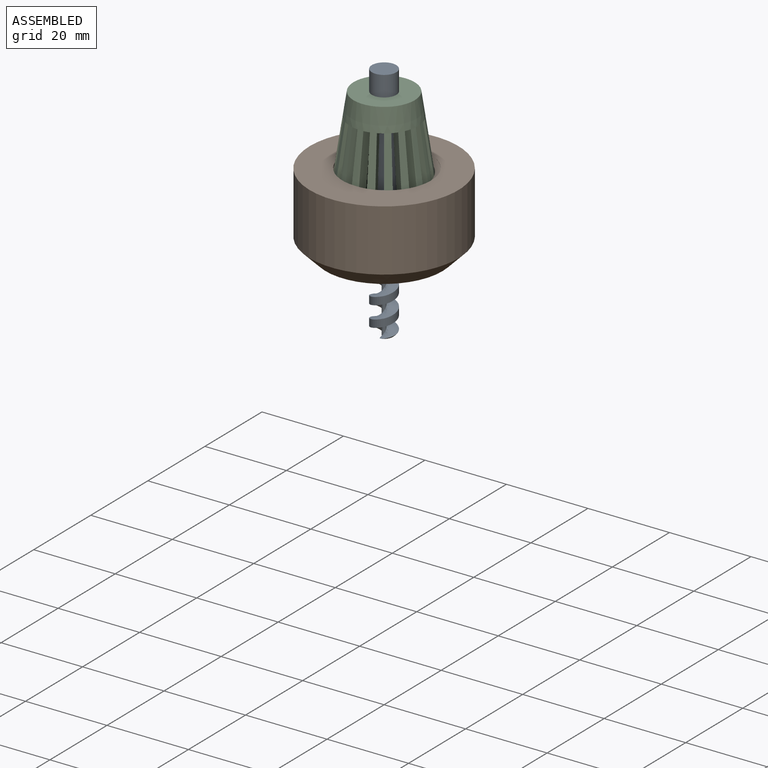
[diagram: assembled view]
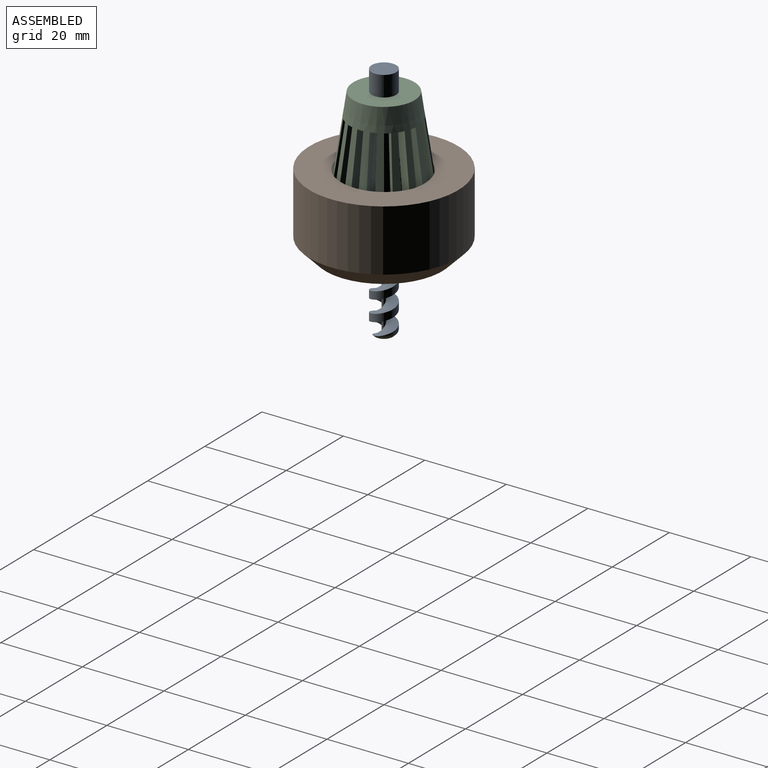
[diagram: assembled view, second angle]
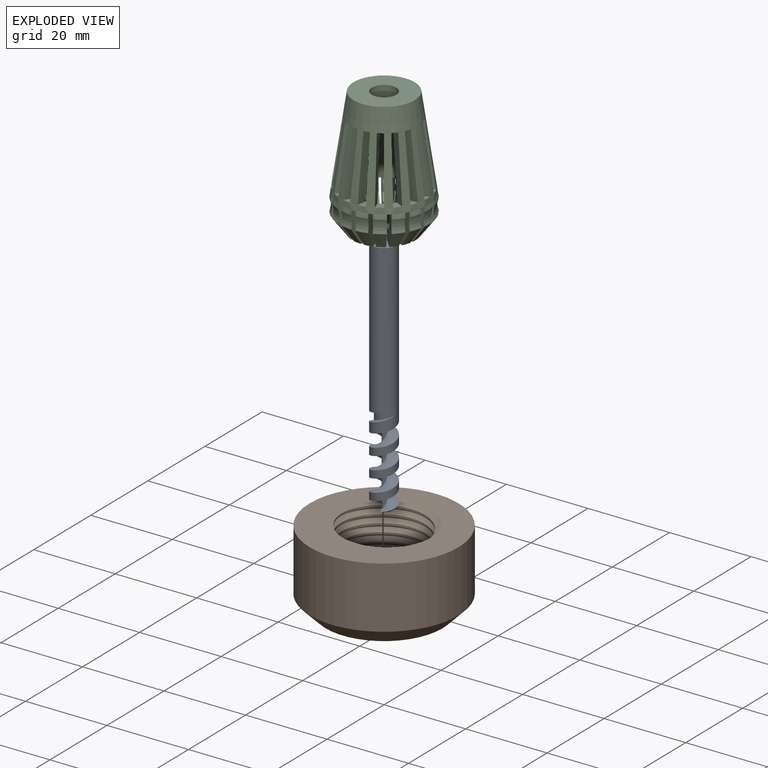
[diagram: exploded view]
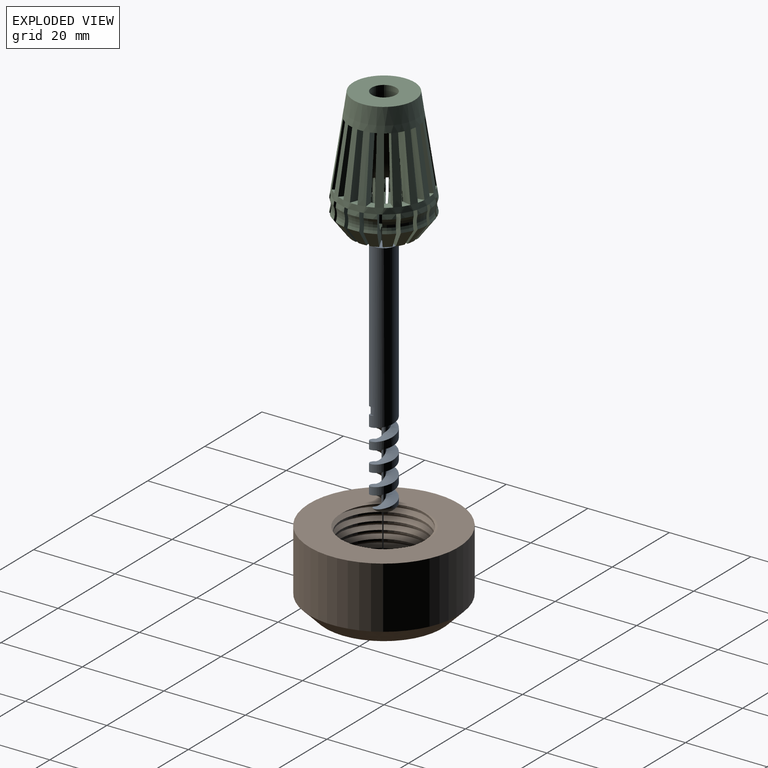
[diagram: exploded view, second angle]
ASSEMBLY  parts=3 mates=2
PART A: 17 faces, bbox 9.8x8.6x59.9 mm
  f0: cylinder r=3mm len=45.1mm, axis (0,0,1), area 757.2mm2, adj f1,f5,f8,f9,f10,f12
  f1: cylinder r=3mm len=6.85mm, axis (0,0,1), area 34.9mm2, adj f0,f2,f7,f8
  f2: cylinder r=3mm len=6.86mm, axis (0,0,1), area 35mm2, adj f1,f3,f7,f8
  f3: cylinder r=3mm len=6mm, axis (0,0,1), area 24.6mm2, adj f2,f7,f8,f14
  f4: plane 3.2x2.12mm, normal (0,0,-1), area 4.8mm2, adj f6,f7,f8,f16
  f5: plane 6x6mm, normal (0,0,1), area 28.3mm2, adj f0
  f6: cylinder r=0.5mm len=18.35mm, axis (0,0,-1), area 20.2mm2, adj f4,f7,f8,f11
  f7: bspline ~17.31x6.93mm, area 99.2mm2, adj f1,f2,f3,f4,f6,f10,f13,f14
  f8: bspline ~19.81x6.93mm, area 115.3mm2, adj f0,f1,f2,f3,f4,f6,f12,f14
  f9: plane 1.86x0.21mm, normal (0.07,-0.99,0.11), area 0mm2, adj f0,f10,f11,f12
  f10: bspline ~9.63x8.45mm, area 19.2mm2, adj f0,f7,f9,f11
  f11: bspline ~6.95x4.81mm, area 20mm2, adj f6,f9,f10,f12
  f12: bspline ~9.77x8.53mm, area 18.1mm2, adj f0,f8,f9,f11
  f13: cone r=3mm half-angle=45deg, axis (0,0,1), area 3.5mm2, adj f7,f14,f15,f16
  f14: torus R=2mm, axis (0,0,-1), area 5.3mm2, adj f3,f7,f8,f13,f15
  f15: bspline ~4.03x1.8mm, area 1.6mm2, adj f8,f13,f14,f16
  f16: torus R=1.59mm, axis (0,0,-1), area 4.4mm2, adj f4,f7,f8,f13,f15
PART B: 21 faces, bbox 37.1x37.1x20.5 mm
  f0: plane 20.5x20.5mm, normal (0,0,1), area 31.4mm2, adj f5,f12
  f1: plane 28.74x28.74mm, normal (0,0,-1), area 350.1mm2, adj f2,f5
  f2: cone r=14.37mm half-angle=45deg, axis (0,0,1), area 562.3mm2, adj f1,f3
  f3: cylinder r=18.25mm len=36.5mm, axis (0,0,-1), area 1733.8mm2, adj f2,f4
  f4: plane 37.13x37.13mm, normal (0,0,1), area 684.2mm2, adj f3,f9,f10,f11,f19
  f5: cylinder r=9.75mm len=19.5mm, axis (0,0,-1), area 250mm2, adj f0,f1
  f6: bspline ~22.26x21.85mm, area 44.9mm2, adj f8,f10,f12,f13,f20
  f7: bspline ~22.26x21.85mm, area 44.8mm2, adj f8,f9,f12,f20
  f8: bspline ~22.44x22.03mm, area 19.8mm2, adj f6,f7,f11,f20
  f9: bspline ~26.17x22.67mm, area 495.3mm2, adj f4,f7,f11,f13,f14,f15,f16,f17
  f10: bspline ~26.17x22.67mm, area 458.4mm2, adj f4,f6,f11,f14,f15,f16,f17,f18
  f11: bspline ~26.38x22.85mm, area 116.5mm2, adj f4,f8,f9,f10
  f12: cylinder r=10.25mm len=20.5mm, axis (0,0,1), area 142.2mm2, adj f0,f6,f7,f13,f20
  f13: cylinder r=10.25mm len=20.5mm, axis (0,0,1), area 50.8mm2, adj f6,f9,f12,f14
  f14: cylinder r=10.25mm len=20.5mm, axis (0,0,1), area 32.2mm2, adj f9,f10,f13,f15
  f15: cylinder r=10.25mm len=20.5mm, axis (0,0,1), area 32.2mm2, adj f9,f10,f14,f16
  f16: cylinder r=10.25mm len=20.5mm, axis (0,0,1), area 32.3mm2, adj f9,f10,f15,f17
  f17: cylinder r=10.25mm len=20.5mm, axis (0,0,1), area 32.2mm2, adj f9,f10,f16,f18
  f18: cylinder r=10.25mm len=20.5mm, axis (0,0,1), area 32.2mm2, adj f9,f10,f17,f19
  f19: cylinder r=10.25mm len=10.25mm, axis (0,0,1), area 4mm2, adj f4,f10,f18
  f20: plane 0.35x0.15mm, normal (0,-1,0), area 0mm2, adj f6,f7,f8,f12
PART C: 224 faces, bbox 24.2x24.1x31 mm
  f0: torus R=15.1mm, axis (0,0,1), area 5.7mm2, adj f17,f70,f198,f223
  f1: torus R=15.1mm, axis (0,0,1), area 5.7mm2, adj f18,f70,f215,f222
  f2: torus R=15.1mm, axis (0,0,1), area 5.7mm2, adj f19,f70,f118,f207
  f3: torus R=15.1mm, axis (0,0,1), area 5.7mm2, adj f20,f70,f199,f206
  f4: torus R=15.1mm, axis (0,0,1), area 5.7mm2, adj f21,f70,f166,f191
  f5: torus R=15.1mm, axis (0,0,1), area 5.7mm2, adj f22,f70,f183,f190
  f6: torus R=15.1mm, axis (0,0,1), area 5.7mm2, adj f23,f70,f175,f214
  f7: torus R=15.1mm, axis (0,0,1), area 5.7mm2, adj f24,f70,f167,f174
  f8: torus R=15.1mm, axis (0,0,1), area 5.7mm2, adj f25,f70,f134,f159
  f9: torus R=15.1mm, axis (0,0,1), area 5.7mm2, adj f26,f70,f151,f158
  f10: torus R=15.1mm, axis (0,0,1), area 5.7mm2, adj f27,f70,f94,f143
  f11: torus R=15.1mm, axis (0,0,1), area 5.7mm2, adj f28,f70,f135,f142
  f12: torus R=15.1mm, axis (0,0,1), area 5.7mm2, adj f29,f70,f102,f127
  f13: torus R=15.1mm, axis (0,0,1), area 5.7mm2, adj f30,f70,f119,f126
  f14: torus R=15.1mm, axis (0,0,1), area 5.7mm2, adj f31,f70,f111,f150
  f15: torus R=15.1mm, axis (0,0,1), area 5.7mm2, adj f32,f70,f103,f110
  f16: torus R=15.1mm, axis (0,0,1), area 5.7mm2, adj f33,f70,f86,f95
  f17: cone r=7.75mm half-angle=36.9deg, axis (0,0,1), area 4.7mm2, adj f0,f73,f198,f223
  f18: cone r=7.75mm half-angle=36.9deg, axis (0,0,1), area 4.7mm2, adj f1,f73,f215,f222
  f19: cone r=7.75mm half-angle=36.9deg, axis (0,0,1), area 4.7mm2, adj f2,f73,f118,f207
  f20: cone r=7.75mm half-angle=36.9deg, axis (0,0,1), area 4.7mm2, adj f3,f73,f199,f206
  f21: cone r=7.75mm half-angle=36.9deg, axis (0,0,1), area 4.7mm2, adj f4,f73,f166,f191
  f22: cone r=7.75mm half-angle=36.9deg, axis (0,0,1), area 4.7mm2, adj f5,f73,f183,f190
  f23: cone r=7.75mm half-angle=36.9deg, axis (0,0,1), area 4.7mm2, adj f6,f73,f175,f214
  f24: cone r=7.75mm half-angle=36.9deg, axis (0,0,1), area 4.7mm2, adj f7,f73,f167,f174
  f25: cone r=7.75mm half-angle=36.9deg, axis (0,0,1), area 4.7mm2, adj f8,f73,f134,f159
  f26: cone r=7.75mm half-angle=36.9deg, axis (0,0,1), area 4.7mm2, adj f9,f73,f151,f158
  f27: cone r=7.75mm half-angle=36.9deg, axis (0,0,1), area 4.7mm2, adj f10,f73,f94,f143
  f28: cone r=7.75mm half-angle=36.9deg, axis (0,0,1), area 4.7mm2, adj f11,f73,f135,f142
  f29: cone r=7.75mm half-angle=36.9deg, axis (0,0,1), area 4.7mm2, adj f12,f73,f102,f127
  f30: cone r=7.75mm half-angle=36.9deg, axis (0,0,1), area 4.7mm2, adj f13,f73,f119,f126
  f31: cone r=7.75mm half-angle=36.9deg, axis (0,0,1), area 4.7mm2, adj f14,f73,f111,f150
  f32: cone r=7.75mm half-angle=36.9deg, axis (0,0,1), area 4.7mm2, adj f15,f73,f103,f110
  f33: cone r=7.75mm half-angle=36.9deg, axis (0,0,1), area 4.7mm2, adj f16,f73,f86,f95
  f34: cone r=11mm half-angle=36.9deg, axis (0,0,1), area 13.4mm2, adj f51,f75,f198,f223
  f35: cone r=11mm half-angle=36.9deg, axis (0,0,1), area 13.4mm2, adj f52,f75,f215,f222
  f36: cone r=11mm half-angle=36.9deg, axis (0,0,1), area 13.4mm2, adj f53,f75,f118,f207
  f37: cone r=11mm half-angle=36.9deg, axis (0,0,1), area 13.4mm2, adj f54,f75,f199,f206
  f38: cone r=11mm half-angle=36.9deg, axis (0,0,1), area 13.4mm2, adj f55,f75,f166,f191
  f39: cone r=11mm half-angle=36.9deg, axis (0,0,1), area 13.4mm2, adj f56,f75,f183,f190
  f40: cone r=11mm half-angle=36.9deg, axis (0,0,1), area 13.4mm2, adj f57,f75,f175,f214
  f41: cone r=11mm half-angle=36.9deg, axis (0,0,1), area 13.4mm2, adj f58,f75,f167,f174
  f42: cone r=11mm half-angle=36.9deg, axis (0,0,1), area 13.4mm2, adj f59,f75,f134,f159
  f43: cone r=11mm half-angle=36.9deg, axis (0,0,1), area 13.4mm2, adj f60,f75,f151,f158
  f44: cone r=11mm half-angle=36.9deg, axis (0,0,1), area 13.4mm2, adj f61,f75,f94,f143
  f45: cone r=11mm half-angle=36.9deg, axis (0,0,1), area 13.4mm2, adj f62,f75,f135,f142
  f46: cone r=11mm half-angle=36.9deg, axis (0,0,1), area 13.4mm2, adj f63,f75,f102,f127
  f47: cone r=11mm half-angle=36.9deg, axis (0,0,1), area 13.4mm2, adj f64,f75,f119,f126
  f48: cone r=11mm half-angle=36.9deg, axis (0,0,1), area 13.4mm2, adj f65,f75,f111,f150
  f49: cone r=11mm half-angle=36.9deg, axis (0,0,1), area 13.4mm2, adj f66,f75,f103,f110
  f50: cone r=11mm half-angle=36.9deg, axis (0,0,1), area 13.4mm2, adj f67,f75,f86,f95
  f51: torus R=15.1mm, axis (0,0,1), area 9.3mm2, adj f34,f78,f198,f223
  f52: torus R=15.1mm, axis (0,0,1), area 9.3mm2, adj f35,f78,f215,f222
  f53: torus R=15.1mm, axis (0,0,1), area 9.3mm2, adj f36,f78,f118,f207
  f54: torus R=15.1mm, axis (0,0,1), area 9.3mm2, adj f37,f78,f199,f206
  f55: torus R=15.1mm, axis (0,0,1), area 9.3mm2, adj f38,f78,f166,f191
  f56: torus R=15.1mm, axis (0,0,1), area 9.3mm2, adj f39,f78,f183,f190
  f57: torus R=15.1mm, axis (0,0,1), area 9.3mm2, adj f40,f78,f175,f214
  f58: torus R=15.1mm, axis (0,0,1), area 9.3mm2, adj f41,f78,f167,f174
  f59: torus R=15.1mm, axis (0,0,1), area 9.3mm2, adj f42,f78,f134,f159
  f60: torus R=15.1mm, axis (0,0,1), area 9.3mm2, adj f43,f78,f151,f158
  f61: torus R=15.1mm, axis (0,0,1), area 9.3mm2, adj f44,f78,f94,f143
  f62: torus R=15.1mm, axis (0,0,1), area 9.3mm2, adj f45,f78,f135,f142
  f63: torus R=15.1mm, axis (0,0,1), area 9.3mm2, adj f46,f78,f102,f127
  f64: torus R=15.1mm, axis (0,0,1), area 9.3mm2, adj f47,f78,f119,f126
  f65: torus R=15.1mm, axis (0,0,1), area 9.3mm2, adj f48,f78,f111,f150
  f66: torus R=15.1mm, axis (0,0,1), area 9.3mm2, adj f49,f78,f103,f110
  f67: torus R=15.1mm, axis (0,0,1), area 9.3mm2, adj f50,f78,f86,f95
  f68: cylinder r=3mm len=6mm, axis (0,0,1), area 56.5mm2, adj f69,f79
  f69: plane 9.83x9.83mm, normal (0,0,-1), area 47.6mm2, adj f68,f70
  f70: cone r=7.93mm half-angle=8.5deg, axis (0,0,-1), area 497.9mm2, adj f0,f1,f2,f3,f4,f5,f6,f7
  f71: torus R=15.1mm, axis (0,0,1), area 5.7mm2, adj f70,f72,f87,f182
  f72: cone r=7.75mm half-angle=36.9deg, axis (0,0,1), area 4.7mm2, adj f71,f73,f87,f182
  f73: plane 12.4x12.39mm, normal (0,0,1), area 77.8mm2, adj f17,f18,f19,f20,f21,f22,f23,f24
  f74: cylinder r=3mm len=6mm, axis (0,0,1), area 56.5mm2, adj f73,f75
  f75: plane 15.4x15.39mm, normal (0,0,-1), area 126.9mm2, adj f34,f35,f36,f37,f38,f39,f40,f41
  f76: cone r=11mm half-angle=36.9deg, axis (0,0,1), area 13.4mm2, adj f75,f77,f87,f182
  f77: torus R=15.1mm, axis (0,0,1), area 9.3mm2, adj f76,f78,f87,f182
  f78: cone r=11mm half-angle=8.5deg, axis (0,0,-1), area 891mm2, adj f51,f52,f53,f54,f55,f56,f57,f58
  f79: plane 15x15mm, normal (0,0,1), area 148.4mm2, adj f68,f78
  f80: cone r=7.67mm half-angle=81.5deg, axis (0,0,1), area 4.8mm2, adj f70,f78,f82,f83
  f81: cone r=5.36mm half-angle=81.5deg, axis (0,0,1), area 3.6mm2, adj f70,f78,f82,f83
  f82: plane 15.88x5.26mm, normal (0.09,1,0), area 46.8mm2, adj f70,f78,f80,f81
  f83: plane 15.88x5.26mm, normal (0.09,-1,0), area 46.8mm2, adj f70,f78,f80,f81
  f84: cone r=10.84mm half-angle=81.5deg, axis (0,0,1), area 2.4mm2, adj f70,f78,f86,f87
  f85: cylinder r=4.44mm len=3mm, axis (0,0,1), area 1.2mm2, adj f73,f75,f86,f87
  f86: plane 8.68x4.87mm, normal (-0.74,0.67,0), area 30.9mm2, adj f16,f33,f50,f67,f70,f73,f75,f78
  f87: plane 8.68x5.24mm, normal (0.8,-0.6,0), area 30.9mm2, adj f70,f71,f72,f73,f75,f76,f77,f78
  f88: cone r=7.67mm half-angle=81.5deg, axis (0,0,1), area 4.8mm2, adj f70,f78,f90,f91
  f89: cone r=5.36mm half-angle=81.5deg, axis (0,0,1), area 3.6mm2, adj f70,f78,f90,f91
  f90: plane 15.88x5.1mm, normal (-0.26,0.97,0), area 46.8mm2, adj f70,f78,f88,f89
  f91: plane 15.88x4.78mm, normal (0.42,-0.91,0), area 46.8mm2, adj f70,f78,f88,f89
  f92: cone r=10.84mm half-angle=81.5deg, axis (0,0,1), area 2.4mm2, adj f70,f78,f94,f95
  f93: cylinder r=4.44mm len=3mm, axis (0,0,1), area 1.2mm2, adj f73,f75,f94,f95
  f94: plane 8.68x5.79mm, normal (-0.47,0.88,0), area 30.9mm2, adj f10,f27,f44,f61,f70,f73,f75,f78
  f95: plane 8.68x5.5mm, normal (0.54,-0.84,0), area 30.9mm2, adj f16,f33,f50,f67,f70,f73,f75,f78
  f96: cone r=7.67mm half-angle=81.5deg, axis (0,0,1), area 4.8mm2, adj f70,f78,f98,f99
  f97: cone r=5.36mm half-angle=81.5deg, axis (0,0,1), area 3.6mm2, adj f70,f78,f98,f99
  f98: plane 15.88x4.32mm, normal (0.82,-0.57,0), area 46.8mm2, adj f70,f78,f96,f97
  f99: plane 15.88x4.78mm, normal (-0.91,0.42,0), area 46.8mm2, adj f70,f78,f96,f97
  f100: cone r=10.84mm half-angle=81.5deg, axis (0,0,1), area 2.4mm2, adj f70,f78,f102,f103
  f101: cylinder r=4.44mm len=3mm, axis (0,0,1), area 1.2mm2, adj f73,f75,f102,f103
  f102: plane 8.68x6.55mm, normal (1,-0.03,0), area 30.9mm2, adj f12,f29,f46,f63,f70,f73,f75,f78
  f103: plane 8.68x6.55mm, normal (-1,-0.05,0), area 30.9mm2, adj f15,f32,f49,f66,f70,f73,f75,f78
  f104: cone r=7.67mm half-angle=81.5deg, axis (0,0,1), area 4.8mm2, adj f70,f78,f106,f107
  f105: cone r=5.36mm half-angle=81.5deg, axis (0,0,1), area 3.6mm2, adj f70,f78,f106,f107
  f106: plane 15.88x5.1mm, normal (0.97,-0.26,0), area 46.8mm2, adj f70,f78,f104,f105
  f107: plane 15.88x5.26mm, normal (-1,0.09,0), area 46.8mm2, adj f70,f78,f104,f105
  f108: cone r=10.84mm half-angle=81.5deg, axis (0,0,1), area 2.4mm2, adj f70,f78,f110,f111
  f109: cylinder r=4.44mm len=3mm, axis (0,0,1), area 1.2mm2, adj f73,f75,f110,f111
  f110: plane 8.68x6.24mm, normal (0.95,0.31,0), area 30.9mm2, adj f15,f32,f49,f66,f70,f73,f75,f78
  f111: plane 8.68x6.03mm, normal (-0.92,-0.39,0), area 30.9mm2, adj f14,f31,f48,f65,f70,f73,f75,f78
  f112: cone r=7.67mm half-angle=81.5deg, axis (0,0,1), area 4.8mm2, adj f70,f78,f114,f115
  f113: cone r=5.36mm half-angle=81.5deg, axis (0,0,1), area 3.6mm2, adj f70,f78,f114,f115
  f114: plane 15.88x5.1mm, normal (0.26,-0.97,0), area 46.8mm2, adj f70,f78,f112,f113
  f115: plane 15.88x4.78mm, normal (-0.42,0.91,0), area 46.8mm2, adj f70,f78,f112,f113
  f116: cone r=10.84mm half-angle=81.5deg, axis (0,0,1), area 2.4mm2, adj f70,f78,f118,f119
  f117: cylinder r=4.44mm len=3mm, axis (0,0,1), area 1.2mm2, adj f73,f75,f118,f119
  f118: plane 8.68x4.87mm, normal (0.74,-0.67,0), area 30.9mm2, adj f2,f19,f36,f53,f70,f73,f75,f78
  f119: plane 8.68x5.24mm, normal (-0.8,0.6,0), area 30.9mm2, adj f13,f30,f47,f64,f70,f73,f75,f78
  f120: cone r=7.67mm half-angle=81.5deg, axis (0,0,1), area 4.8mm2, adj f70,f78,f122,f123
  f121: cone r=5.36mm half-angle=81.5deg, axis (0,0,1), area 3.6mm2, adj f70,f78,f122,f123
  f122: plane 15.88x4.32mm, normal (0.57,-0.82,0), area 46.8mm2, adj f70,f78,f120,f121
  f123: plane 15.88x3.73mm, normal (-0.71,0.71,0), area 46.8mm2, adj f70,f78,f120,f121
  f124: cone r=10.84mm half-angle=81.5deg, axis (0,0,1), area 2.4mm2, adj f70,f78,f126,f127
  f125: cylinder r=4.44mm len=3mm, axis (0,0,1), area 1.2mm2, adj f73,f75,f126,f127
  f126: plane 8.68x6.08mm, normal (0.93,-0.37,0), area 30.9mm2, adj f13,f30,f47,f64,f70,f73,f75,f78
  f127: plane 8.68x6.27mm, normal (-0.96,0.29,0), area 30.9mm2, adj f12,f29,f46,f63,f70,f73,f75,f78
  f128: cone r=7.67mm half-angle=81.5deg, axis (0,0,1), area 4.8mm2, adj f70,f78,f130,f131
  f129: cone r=5.36mm half-angle=81.5deg, axis (0,0,1), area 3.6mm2, adj f70,f78,f130,f131
  f130: plane 15.88x3.73mm, normal (0.71,0.71,0), area 46.8mm2, adj f70,f78,f128,f129
  f131: plane 15.88x4.32mm, normal (-0.57,-0.82,0), area 46.8mm2, adj f70,f78,f128,f129
  f132: cone r=10.84mm half-angle=81.5deg, axis (0,0,1), area 2.4mm2, adj f70,f78,f134,f135
  f133: cylinder r=4.44mm len=3mm, axis (0,0,1), area 1.2mm2, adj f73,f75,f134,f135
  f134: plane 8.68x6.41mm, normal (0.21,0.98,0), area 30.9mm2, adj f8,f25,f42,f59,f70,f73,f75,f78
  f135: plane 8.68x6.51mm, normal (-0.12,-0.99,0), area 30.9mm2, adj f11,f28,f45,f62,f70,f73,f75,f78
  f136: cone r=7.67mm half-angle=81.5deg, axis (0,0,1), area 4.8mm2, adj f70,f78,f138,f139
  f137: cone r=5.36mm half-angle=81.5deg, axis (0,0,1), area 3.6mm2, adj f70,f78,f138,f139
  f138: plane 15.88x4.78mm, normal (0.42,0.91,0), area 46.8mm2, adj f70,f78,f136,f137
  f139: plane 15.88x5.1mm, normal (-0.26,-0.97,0), area 46.8mm2, adj f70,f78,f136,f137
  f140: cone r=10.84mm half-angle=81.5deg, axis (0,0,1), area 2.4mm2, adj f70,f78,f142,f143
  f141: cylinder r=4.44mm len=3mm, axis (0,0,1), area 1.2mm2, adj f73,f75,f142,f143
  f142: plane 8.68x6.49mm, normal (-0.14,0.99,0), area 30.9mm2, adj f11,f28,f45,f62,f70,f73,f75,f78
  f143: plane 8.68x6.39mm, normal (0.22,-0.97,0), area 30.9mm2, adj f10,f27,f44,f61,f70,f73,f75,f78
  f144: cone r=7.67mm half-angle=81.5deg, axis (0,0,1), area 4.8mm2, adj f70,f78,f146,f147
  f145: cone r=5.36mm half-angle=81.5deg, axis (0,0,1), area 3.6mm2, adj f70,f78,f146,f147
  f146: plane 15.88x5.26mm, normal (1,0.09,0), area 46.8mm2, adj f70,f78,f144,f145
  f147: plane 15.88x5.1mm, normal (-0.97,-0.26,0), area 46.8mm2, adj f70,f78,f144,f145
  f148: cone r=10.84mm half-angle=81.5deg, axis (0,0,1), area 2.4mm2, adj f70,f78,f150,f151
  f149: cylinder r=4.44mm len=3mm, axis (0,0,1), area 1.2mm2, adj f73,f75,f150,f151
  f150: plane 8.68x5.17mm, normal (0.79,0.62,0), area 30.9mm2, adj f14,f31,f48,f65,f70,f73,f75,f78
  f151: plane 8.68x4.79mm, normal (-0.73,-0.68,0), area 30.9mm2, adj f9,f26,f43,f60,f70,f73,f75,f78
  f152: cone r=7.67mm half-angle=81.5deg, axis (0,0,1), area 4.8mm2, adj f70,f78,f154,f155
  f153: cone r=5.36mm half-angle=81.5deg, axis (0,0,1), area 3.6mm2, adj f70,f78,f154,f155
  f154: plane 15.88x4.78mm, normal (0.91,0.42,0), area 46.8mm2, adj f70,f78,f152,f153
  f155: plane 15.88x4.32mm, normal (-0.82,-0.57,0), area 46.8mm2, adj f70,f78,f152,f153
  f156: cone r=10.84mm half-angle=81.5deg, axis (0,0,1), area 2.4mm2, adj f70,f78,f158,f159
  f157: cylinder r=4.44mm len=3mm, axis (0,0,1), area 1.2mm2, adj f73,f75,f158,f159
  f158: plane 8.68x5.56mm, normal (0.53,0.85,0), area 30.9mm2, adj f9,f26,f43,f60,f70,f73,f75,f78
  f159: plane 8.68x5.84mm, normal (-0.45,-0.89,0), area 30.9mm2, adj f8,f25,f42,f59,f70,f73,f75,f78
  f160: cone r=7.67mm half-angle=81.5deg, axis (0,0,1), area 4.8mm2, adj f70,f78,f162,f163
  f161: cone r=5.36mm half-angle=81.5deg, axis (0,0,1), area 3.6mm2, adj f70,f78,f162,f163
  f162: plane 15.88x5.1mm, normal (-0.97,0.26,0), area 46.8mm2, adj f70,f78,f160,f161
  f163: plane 15.88x5.26mm, normal (1,-0.09,0), area 46.8mm2, adj f70,f78,f160,f161
  f164: cone r=10.84mm half-angle=81.5deg, axis (0,0,1), area 2.4mm2, adj f70,f78,f166,f167
  f165: cylinder r=4.44mm len=3mm, axis (0,0,1), area 1.2mm2, adj f73,f75,f166,f167
  f166: plane 8.68x6.24mm, normal (-0.95,-0.31,0), area 30.9mm2, adj f4,f21,f38,f55,f70,f73,f75,f78
  f167: plane 8.68x6.03mm, normal (0.92,0.39,0), area 30.9mm2, adj f7,f24,f41,f58,f70,f73,f75,f78
  f168: cone r=7.67mm half-angle=81.5deg, axis (0,0,1), area 4.8mm2, adj f70,f78,f170,f171
  f169: cone r=5.36mm half-angle=81.5deg, axis (0,0,1), area 3.6mm2, adj f70,f78,f170,f171
  f170: plane 15.88x5.26mm, normal (-1,-0.09,0), area 46.8mm2, adj f70,f78,f168,f169
  f171: plane 15.88x5.1mm, normal (0.97,0.26,0), area 46.8mm2, adj f70,f78,f168,f169
  f172: cone r=10.84mm half-angle=81.5deg, axis (0,0,1), area 2.4mm2, adj f70,f78,f174,f175
  f173: cylinder r=4.44mm len=3mm, axis (0,0,1), area 1.2mm2, adj f73,f75,f174,f175
  f174: plane 8.68x5.17mm, normal (-0.79,-0.62,0), area 30.9mm2, adj f7,f24,f41,f58,f70,f73,f75,f78
  f175: plane 8.68x4.79mm, normal (0.73,0.68,0), area 30.9mm2, adj f6,f23,f40,f57,f70,f73,f75,f78
  f176: cone r=7.67mm half-angle=81.5deg, axis (0,0,1), area 4.8mm2, adj f70,f78,f178,f179
  f177: cone r=5.36mm half-angle=81.5deg, axis (0,0,1), area 3.6mm2, adj f70,f78,f178,f179
  f178: plane 15.88x4.32mm, normal (-0.57,0.82,0), area 46.8mm2, adj f70,f78,f176,f177
  f179: plane 15.88x3.73mm, normal (0.71,-0.71,0), area 46.8mm2, adj f70,f78,f176,f177
  f180: cone r=10.84mm half-angle=81.5deg, axis (0,0,1), area 2.4mm2, adj f70,f78,f182,f183
  f181: cylinder r=4.44mm len=3mm, axis (0,0,1), area 1.2mm2, adj f73,f75,f182,f183
  f182: plane 8.68x6.08mm, normal (-0.93,0.37,0), area 30.9mm2, adj f70,f71,f72,f73,f75,f76,f77,f78
  f183: plane 8.68x6.27mm, normal (0.96,-0.29,0), area 30.9mm2, adj f5,f22,f39,f56,f70,f73,f75,f78
  f184: cone r=7.67mm half-angle=81.5deg, axis (0,0,1), area 4.8mm2, adj f70,f78,f186,f187
  f185: cone r=5.36mm half-angle=81.5deg, axis (0,0,1), area 3.6mm2, adj f70,f78,f186,f187
  f186: plane 15.88x4.32mm, normal (-0.82,0.57,0), area 46.8mm2, adj f70,f78,f184,f185
  f187: plane 15.88x4.78mm, normal (0.91,-0.42,0), area 46.8mm2, adj f70,f78,f184,f185
  f188: cone r=10.84mm half-angle=81.5deg, axis (0,0,1), area 2.4mm2, adj f70,f78,f190,f191
  f189: cylinder r=4.44mm len=3mm, axis (0,0,1), area 1.2mm2, adj f73,f75,f190,f191
  f190: plane 8.68x6.55mm, normal (-1,0.03,0), area 30.9mm2, adj f5,f22,f39,f56,f70,f73,f75,f78
  f191: plane 8.68x6.55mm, normal (1,0.05,0), area 30.9mm2, adj f4,f21,f38,f55,f70,f73,f75,f78
  f192: cone r=7.67mm half-angle=81.5deg, axis (0,0,1), area 4.8mm2, adj f70,f78,f194,f195
  f193: cone r=5.36mm half-angle=81.5deg, axis (0,0,1), area 3.6mm2, adj f70,f78,f194,f195
  f194: plane 15.88x4.78mm, normal (-0.42,-0.91,0), area 46.8mm2, adj f70,f78,f192,f193
  f195: plane 15.88x5.1mm, normal (0.26,0.97,0), area 46.8mm2, adj f70,f78,f192,f193
  f196: cone r=10.84mm half-angle=81.5deg, axis (0,0,1), area 2.4mm2, adj f70,f78,f198,f199
  f197: cylinder r=4.44mm len=3mm, axis (0,0,1), area 1.2mm2, adj f73,f75,f198,f199
  f198: plane 8.68x6.49mm, normal (0.14,-0.99,0), area 30.9mm2, adj f0,f17,f34,f51,f70,f73,f75,f78
  f199: plane 8.68x6.39mm, normal (-0.22,0.97,0), area 30.9mm2, adj f3,f20,f37,f54,f70,f73,f75,f78
  f200: cone r=7.67mm half-angle=81.5deg, axis (0,0,1), area 4.8mm2, adj f70,f78,f202,f203
  f201: cone r=5.36mm half-angle=81.5deg, axis (0,0,1), area 3.6mm2, adj f70,f78,f202,f203
  f202: plane 15.88x5.26mm, normal (-0.09,-1,0), area 46.8mm2, adj f70,f78,f200,f201
  f203: plane 15.88x5.26mm, normal (-0.09,1,0), area 46.8mm2, adj f70,f78,f200,f201
  f204: cone r=10.84mm half-angle=81.5deg, axis (0,0,1), area 2.4mm2, adj f70,f78,f206,f207
  f205: cylinder r=4.44mm len=3mm, axis (0,0,1), area 1.2mm2, adj f73,f75,f206,f207
  f206: plane 8.68x5.79mm, normal (0.47,-0.88,0), area 30.9mm2, adj f3,f20,f37,f54,f70,f73,f75,f78
  f207: plane 8.68x5.5mm, normal (-0.54,0.84,0), area 30.9mm2, adj f2,f19,f36,f53,f70,f73,f75,f78
  f208: cone r=7.67mm half-angle=81.5deg, axis (0,0,1), area 4.8mm2, adj f70,f78,f210,f211
  f209: cone r=5.36mm half-angle=81.5deg, axis (0,0,1), area 3.6mm2, adj f70,f78,f210,f211
  f210: plane 15.88x4.78mm, normal (-0.91,-0.42,0), area 46.8mm2, adj f70,f78,f208,f209
  f211: plane 15.88x4.32mm, normal (0.82,0.57,0), area 46.8mm2, adj f70,f78,f208,f209
  f212: cone r=10.84mm half-angle=81.5deg, axis (0,0,1), area 2.4mm2, adj f70,f78,f214,f215
  f213: cylinder r=4.44mm len=3mm, axis (0,0,1), area 1.2mm2, adj f73,f75,f214,f215
  f214: plane 8.68x5.56mm, normal (-0.53,-0.85,0), area 30.9mm2, adj f6,f23,f40,f57,f70,f73,f75,f78
  f215: plane 8.68x5.84mm, normal (0.45,0.89,0), area 30.9mm2, adj f1,f18,f35,f52,f70,f73,f75,f78
  f216: cone r=7.67mm half-angle=81.5deg, axis (0,0,1), area 4.8mm2, adj f70,f78,f218,f219
  f217: cone r=5.36mm half-angle=81.5deg, axis (0,0,1), area 3.6mm2, adj f70,f78,f218,f219
  f218: plane 15.88x3.73mm, normal (-0.71,-0.71,0), area 46.8mm2, adj f70,f78,f216,f217
  f219: plane 15.88x4.32mm, normal (0.57,0.82,0), area 46.8mm2, adj f70,f78,f216,f217
  f220: cone r=10.84mm half-angle=81.5deg, axis (0,0,1), area 2.4mm2, adj f70,f78,f222,f223
  f221: cylinder r=4.44mm len=3mm, axis (0,0,1), area 1.2mm2, adj f73,f75,f222,f223
  f222: plane 8.68x6.41mm, normal (-0.21,-0.98,0), area 30.9mm2, adj f1,f18,f35,f52,f70,f73,f75,f78
  f223: plane 8.68x6.51mm, normal (0.12,0.99,0), area 30.9mm2, adj f0,f17,f34,f51,f70,f73,f75,f78
PLACE A t=(0,0,6.96)mm
PLACE B at identity fixed
PLACE C t=(0,0,5.06)mm
MATE slider B.f2 <-> C.f0  axis (0,0,-1) through (0,0,4)mm
MATE fastened C.f0 <-> A.f0  axis (0,0,1) through (0,0,36.06)mm
